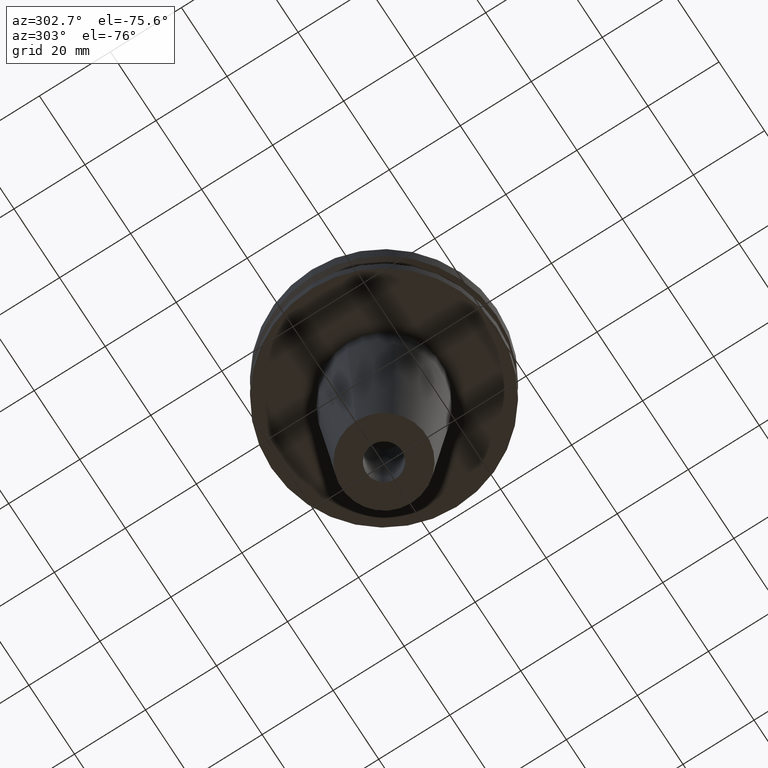
[diagram: clean part render]
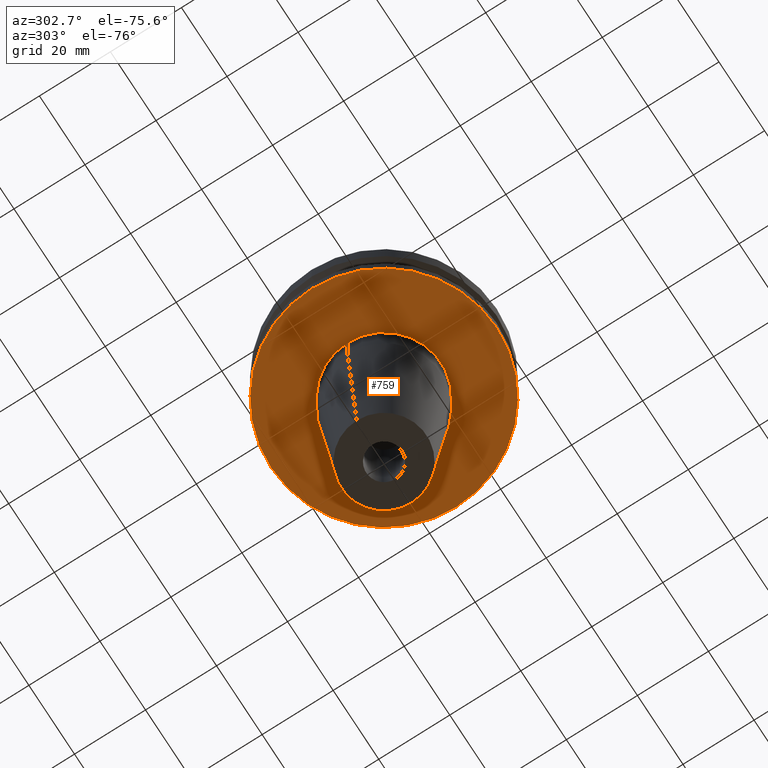
[diagram: same view with one face highlighted and labeled with its STEP entity id]
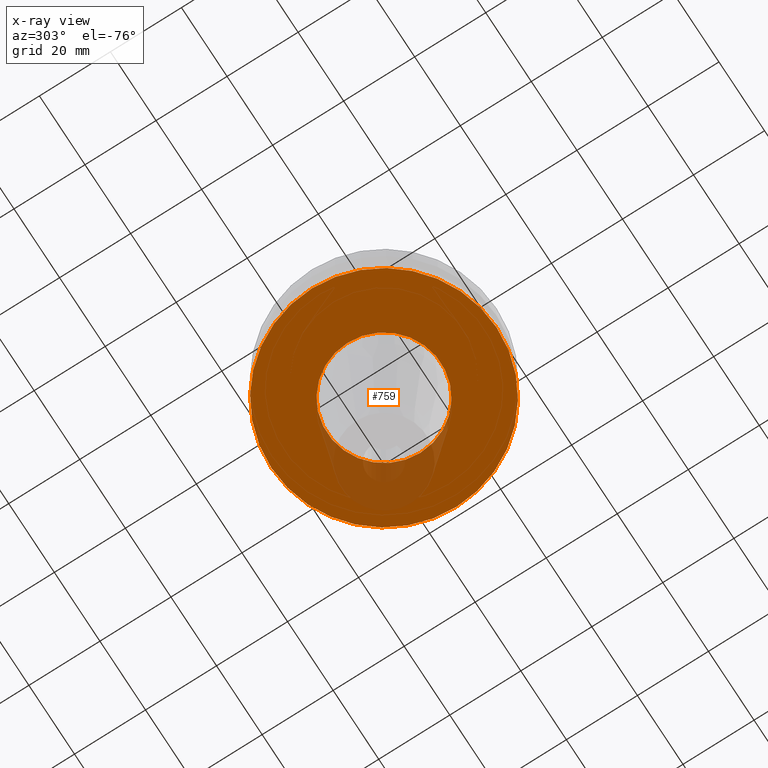
[diagram: x-ray of the same camera — body ghosted, the highlighted face saturated]
A machine part, auxiliary view. The second image highlights one B-rep face of the part: STEP entity #759.
The next image is the same camera in x-ray: the body ghosted, the highlighted face saturated — about 12% of this face is hidden behind the body in this view.
In plain terms, the highlighted planar face has unit normal (0, -0, 1).
Its self-contained STEP definition (entity closure, byte-faithful):
#2 = EDGE_CURVE ( 'NONE', #573, #775, #335, .T. ) ;
#4 = CARTESIAN_POINT ( 'NONE',  ( 0.000000000000000000, 0.000000000000000000, -19.04999999999999716 ) ) ;
#12 = DIRECTION ( 'NONE',  ( 1.000000000000000000, 0.000000000000000000, 0.000000000000000000 ) ) ;
#13 = FACE_OUTER_BOUND ( 'NONE', #513, .T. ) ;
#29 = CARTESIAN_POINT ( 'NONE',  ( 0.000000000000000000, 31.74999999999999289, -19.04999999999999716 ) ) ;
#43 = ORIENTED_EDGE ( 'NONE', *, *, #2, .F. ) ;
#50 = EDGE_CURVE ( 'NONE', #333, #342, #238, .T. ) ;
#57 = AXIS2_PLACEMENT_3D ( 'NONE', #59, #308, #768 ) ;
#59 = CARTESIAN_POINT ( 'NONE',  ( 0.000000000000000000, 0.000000000000000000, -19.04999999999999716 ) ) ;
#64 = EDGE_LOOP ( 'NONE', ( #541, #229 ) ) ;
#114 = CARTESIAN_POINT ( 'NONE',  ( 0.000000000000000000, 0.000000000000000000, -19.04999999999999716 ) ) ;
#139 = CARTESIAN_POINT ( 'NONE',  ( -31.74999999999999289, 3.888253587292845687E-15, -19.04999999999999716 ) ) ;
#229 = ORIENTED_EDGE ( 'NONE', *, *, #50, .T. ) ;
#238 = CIRCLE ( 'NONE', #668, 15.99999999999999289 ) ;
#266 = DIRECTION ( 'NONE',  ( -0.000000000000000000, -0.000000000000000000, 1.000000000000000000 ) ) ;
#270 = FACE_BOUND ( 'NONE', #64, .T. ) ;
#285 = CIRCLE ( 'NONE', #755, 15.99999999999999289 ) ;
#308 = DIRECTION ( 'NONE',  ( -0.000000000000000000, -0.000000000000000000, 1.000000000000000000 ) ) ;
#318 = CIRCLE ( 'NONE', #57, 31.74999999999999289 ) ;
#333 = VERTEX_POINT ( 'NONE', #592 ) ;
#335 = CIRCLE ( 'NONE', #357, 31.74999999999999289 ) ;
#342 = VERTEX_POINT ( 'NONE', #708 ) ;
#357 = AXIS2_PLACEMENT_3D ( 'NONE', #4, #383, #12 ) ;
#358 = DIRECTION ( 'NONE',  ( -0.000000000000000000, -0.000000000000000000, 1.000000000000000000 ) ) ;
#383 = DIRECTION ( 'NONE',  ( -0.000000000000000000, -0.000000000000000000, 1.000000000000000000 ) ) ;
#424 = CARTESIAN_POINT ( 'NONE',  ( 0.000000000000000000, 0.000000000000000000, -19.04999999999999716 ) ) ;
#499 = ORIENTED_EDGE ( 'NONE', *, *, #589, .F. ) ;
#513 = EDGE_LOOP ( 'NONE', ( #43, #499 ) ) ;
#541 = ORIENTED_EDGE ( 'NONE', *, *, #582, .T. ) ;
#549 = PLANE ( 'NONE',  #634 ) ;
#573 = VERTEX_POINT ( 'NONE', #600 ) ;
#582 = EDGE_CURVE ( 'NONE', #342, #333, #285, .T. ) ;
#586 = DIRECTION ( 'NONE',  ( 1.000000000000000000, 0.000000000000000000, 0.000000000000000000 ) ) ;
#589 = EDGE_CURVE ( 'NONE', #775, #573, #318, .T. ) ;
#592 = CARTESIAN_POINT ( 'NONE',  ( -15.99999999999999289, 1.959434878635764343E-15, -19.04999999999999716 ) ) ;
#600 = CARTESIAN_POINT ( 'NONE',  ( 31.74999999999999289, 0.000000000000000000, -19.04999999999999716 ) ) ;
#634 = AXIS2_PLACEMENT_3D ( 'NONE', #29, #682, #724 ) ;
#668 = AXIS2_PLACEMENT_3D ( 'NONE', #424, #266, #726 ) ;
#682 = DIRECTION ( 'NONE',  ( 0.000000000000000000, -0.000000000000000000, 1.000000000000000000 ) ) ;
#708 = CARTESIAN_POINT ( 'NONE',  ( 15.99999999999999289, 0.000000000000000000, -19.04999999999999716 ) ) ;
#724 = DIRECTION ( 'NONE',  ( 1.000000000000000000, 0.000000000000000000, 0.000000000000000000 ) ) ;
#726 = DIRECTION ( 'NONE',  ( 1.000000000000000000, 0.000000000000000000, 0.000000000000000000 ) ) ;
#755 = AXIS2_PLACEMENT_3D ( 'NONE', #114, #358, #586 ) ;
#759 = ADVANCED_FACE ( 'NONE', ( #270, #13 ), #549, .F. ) ;
#768 = DIRECTION ( 'NONE',  ( 1.000000000000000000, 0.000000000000000000, 0.000000000000000000 ) ) ;
#775 = VERTEX_POINT ( 'NONE', #139 ) ;